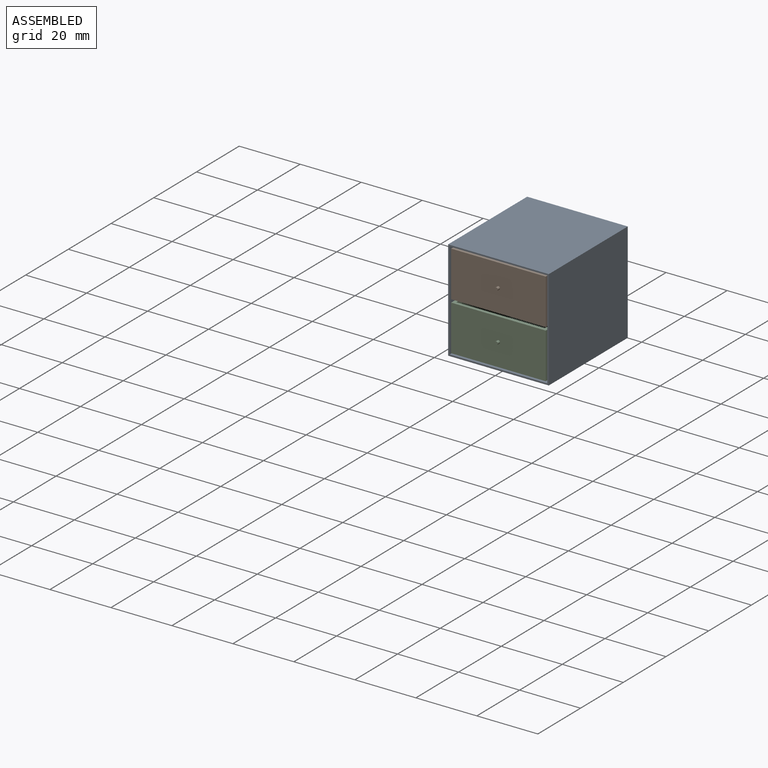
[diagram: assembled view]
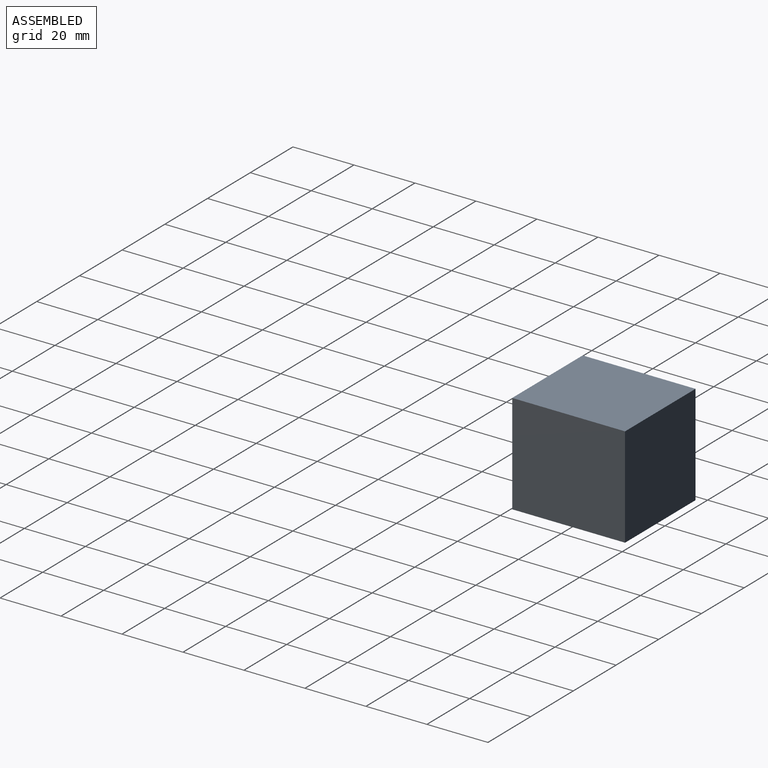
[diagram: assembled view, second angle]
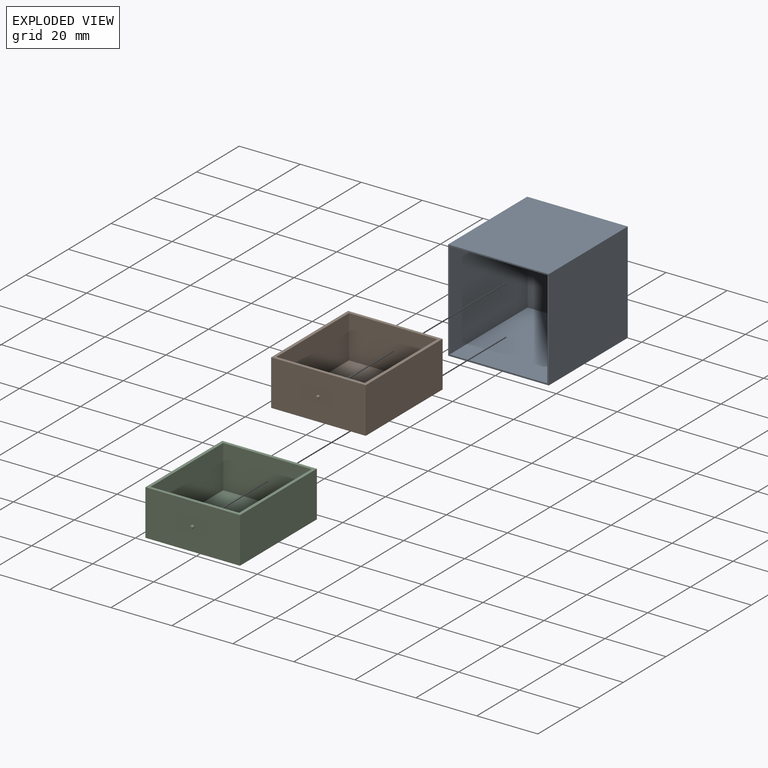
[diagram: exploded view]
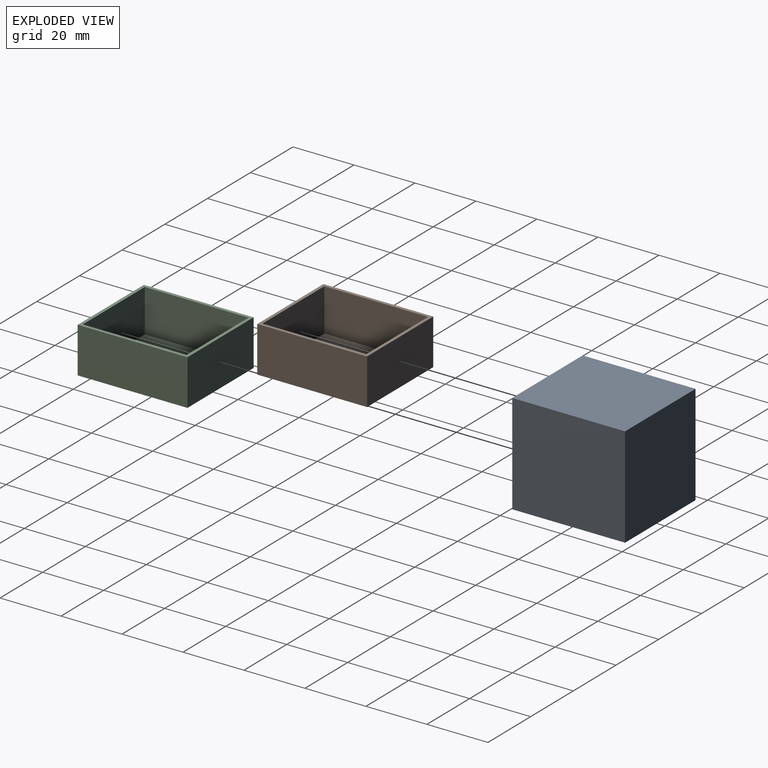
[diagram: exploded view, second angle]
ASSEMBLY  parts=3 mates=2
PART A: 11 faces, bbox 33x37x33 mm
  f0: plane 36.5x32mm, normal (1,0,0), area 1168mm2, adj f1,f7,f8,f10
  f1: plane 36.5x32mm, normal (0,0,-1), area 1168mm2, adj f0,f2,f8,f10
  f2: plane 36.5x32mm, normal (-1,0,0), area 1168mm2, adj f1,f7,f8,f10
  f3: plane 37x33mm, normal (-1,0,0), area 1221mm2, adj f4,f6,f8,f9
  f4: plane 37x33mm, normal (0,0,-1), area 1221mm2, adj f3,f5,f8,f9
  f5: plane 37x33mm, normal (1,0,0), area 1221mm2, adj f4,f6,f8,f9
  f6: plane 37x33mm, normal (0,0,1), area 1221mm2, adj f3,f5,f8,f9
  f7: plane 36.5x32mm, normal (0,0,1), area 1168mm2, adj f0,f2,f8,f10
  f8: plane 33x33mm, normal (0,-1,0), area 65mm2, adj f0,f1,f2,f3,f4,f5,f6,f7
  f9: plane 33x33mm, normal (0,1,0), area 1089mm2, adj f3,f4,f5,f6
  f10: plane 32x32mm, normal (0,-1,0), area 1024mm2, adj f0,f1,f2,f7
PART B: 13 faces, bbox 31x37x15 mm
  f0: plane 36x31mm, normal (0,0,1), area 130mm2, adj f1,f3,f4,f5,f6,f8,f9,f10
  f1: plane 36x15mm, normal (-1,0,0), area 540mm2, adj f0,f2,f4,f5
  f2: plane 36x31mm, normal (0,0,-1), area 1116mm2, adj f1,f3,f4,f5
  f3: plane 36x15mm, normal (1,0,0), area 540mm2, adj f0,f2,f4,f5
  f4: plane 31x15mm, normal (0,-1,0), area 464.2mm2, adj f0,f1,f2,f3,f11
  f5: plane 31x15mm, normal (0,1,0), area 465mm2, adj f0,f1,f2,f3
  f6: plane 34x14mm, normal (1,0,0), area 476mm2, adj f0,f7,f9,f10
  f7: plane 34x29mm, normal (0,0,1), area 986mm2, adj f6,f8,f9,f10
  f8: plane 34x14mm, normal (-1,0,0), area 476mm2, adj f0,f7,f9,f10
  f9: plane 29x14mm, normal (0,1,0), area 406mm2, adj f0,f6,f7,f8
  f10: plane 29x14mm, normal (0,-1,0), area 406mm2, adj f0,f6,f7,f8
  f11: cylinder r=0.5mm len=1mm, axis (0,1,0), area 3.1mm2, adj f4,f12
  f12: plane 1x1mm, normal (0,-1,0), area 0.8mm2, adj f11
PART C: same geometry as B
PLACE A at identity fixed
PLACE B at identity
PLACE C t=(0,0,-16)mm
MATE slider B.f4 <-> A.f8  axis (0,-1,0) through (0,-18.5,15.5)mm
MATE slider C.f4 <-> A.f8  axis (0,-1,0) through (0,-18.5,-15.5)mm
